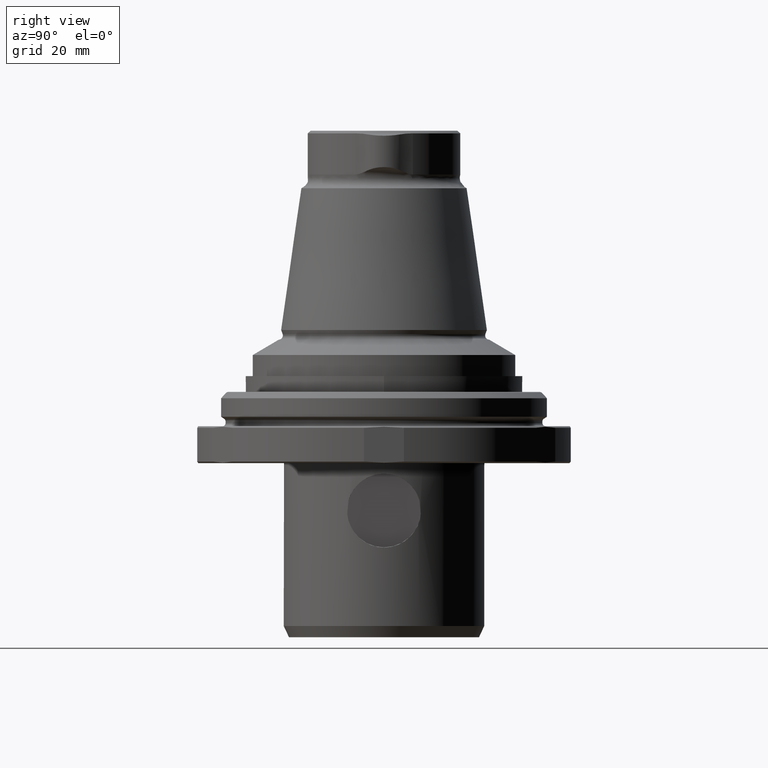
[diagram: clean part render]
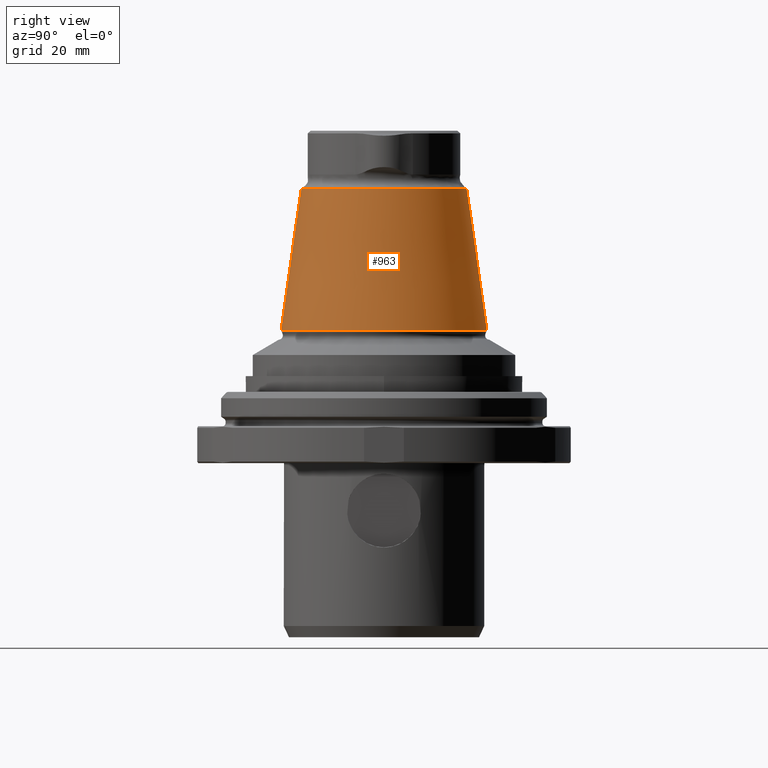
[diagram: same view with one face highlighted and labeled with its STEP entity id]
A machine part, right view. The second image highlights one B-rep face of the part: STEP entity #963.
In plain terms, the highlighted conical surface has half-angle 7.95 deg.
Its self-contained STEP definition (entity closure, byte-faithful):
#34=CONICAL_SURFACE('',#1066,19.5234803751964,0.138753675533549);
#137=CIRCLE('',#1065,15.7697129677509);
#138=CIRCLE('',#1067,19.5234803751964);
#336=ORIENTED_EDGE('',*,*,#548,.T.);
#337=ORIENTED_EDGE('',*,*,#549,.F.);
#548=EDGE_CURVE('',#663,#663,#137,.T.);
#549=EDGE_CURVE('',#664,#664,#138,.T.);
#663=VERTEX_POINT('',#1685);
#664=VERTEX_POINT('',#1688);
#750=EDGE_LOOP('',(#336));
#751=EDGE_LOOP('',(#337));
#846=FACE_BOUND('',#750,.T.);
#847=FACE_BOUND('',#751,.T.);
#963=ADVANCED_FACE('',(#846,#847),#34,.T.);
#1065=AXIS2_PLACEMENT_3D('',#1684,#1255,#1256);
#1066=AXIS2_PLACEMENT_3D('',#1686,#1257,#1258);
#1067=AXIS2_PLACEMENT_3D('',#1687,#1259,#1260);
#1255=DIRECTION('',(-4.38328612912168E-16,-8.51929322185263E-24,-1.));
#1256=DIRECTION('',(-1.,9.77164313006873E-16,4.38328610599545E-16));
#1257=DIRECTION('',(-4.38328612912168E-16,-8.51929322185263E-24,-1.));
#1258=DIRECTION('',(-1.,9.77164313006873E-16,4.38328610599545E-16));
#1259=DIRECTION('',(-4.38328612912168E-16,-8.51929322185263E-24,-1.));
#1260=DIRECTION('',(-1.,9.77164313006873E-16,4.38328610599545E-16));
#1684=CARTESIAN_POINT('',(-6.84295923615457E-14,-9.81645347925611E-14,44.108));
#1685=CARTESIAN_POINT('',(-15.7697129677509,-8.27549340541132E-14,44.108));
#1686=CARTESIAN_POINT('',(-8.02117003448131E-14,-9.81645350215565E-14,17.2283767306235));
#1687=CARTESIAN_POINT('',(-8.02117003448131E-14,-9.81645350215565E-14,17.2283767306235));
#1688=CARTESIAN_POINT('',(-19.5234803751965,-7.90868867332246E-14,17.2283767306235));